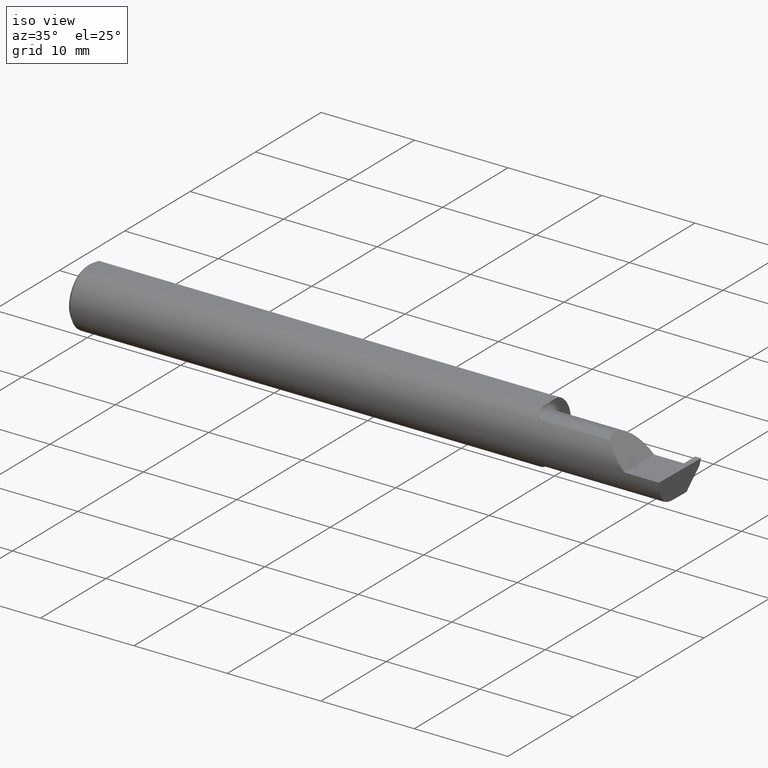
[diagram: clean part render]
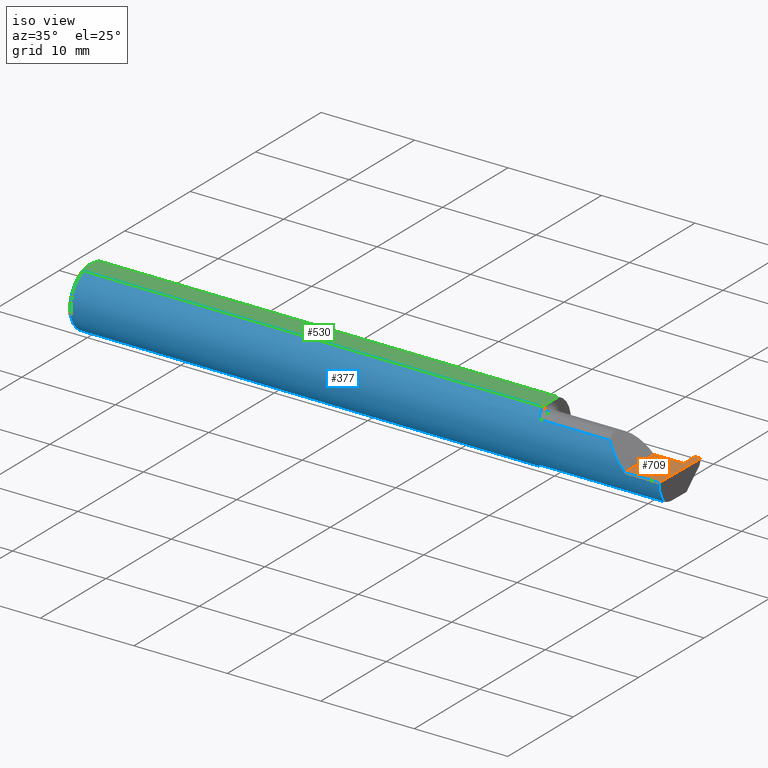
[diagram: same view with three faces highlighted in distinct colors, each labeled with its STEP entity id]
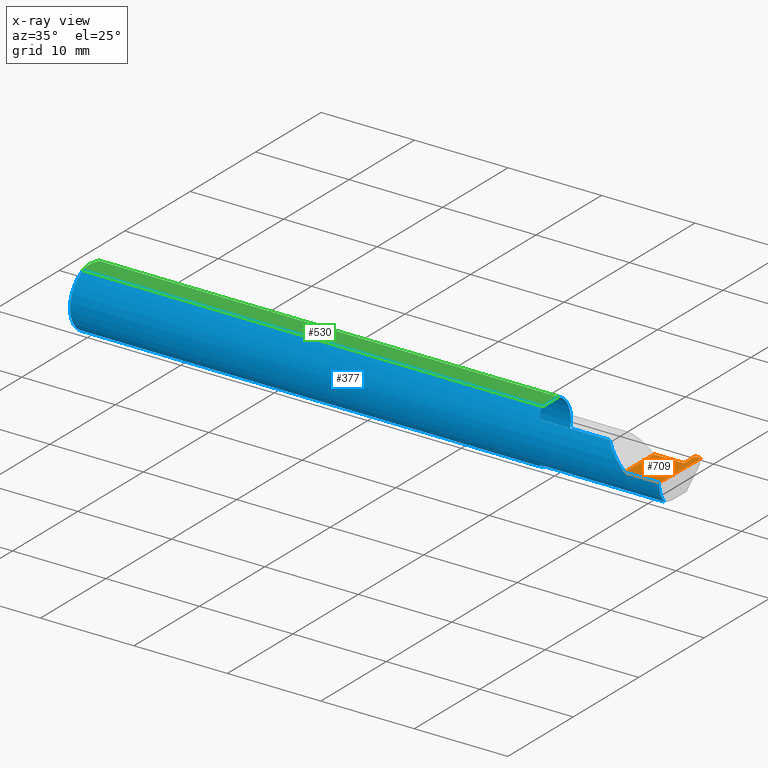
[diagram: x-ray of the same camera — body ghosted, the three highlighted faces saturated]
A machine part, iso view with three faces highlighted in distinct colors.
The next image is the same camera in x-ray (body ghosted, the three faces saturated) — at least one of them is partly hidden behind the body in this view.
Their STEP definitions:

[orange] entity #709 — the highlighted planar face has unit normal (-0, 0, -1).
#36 = DIRECTION ( 'NONE',  ( -0.000000000000000000, 1.000000000000000000, -0.000000000000000000 ) ) ;
#51 = ORIENTED_EDGE ( 'NONE', *, *, #91, .F. ) ;
#58 = VECTOR ( 'NONE', #219, 39.37007874015748143 ) ;
#91 = EDGE_CURVE ( 'NONE', #667, #267, #274, .T. ) ;
#104 = VERTEX_POINT ( 'NONE', #473 ) ;
#115 = EDGE_CURVE ( 'NONE', #182, #248, #643, .T. ) ;
#130 = CARTESIAN_POINT ( 'NONE',  ( 3.749399456654637998E-32, -0.1248500000000000026, 3.061616997868380676E-16 ) ) ;
#162 = DIRECTION ( 'NONE',  ( 1.000000000000000000, -0.000000000000000000, -0.000000000000000000 ) ) ;
#177 = ORIENTED_EDGE ( 'NONE', *, *, #350, .F. ) ;
#178 = EDGE_CURVE ( 'NONE', #104, #596, #676, .T. ) ;
#182 = VERTEX_POINT ( 'NONE', #303 ) ;
#201 = ORIENTED_EDGE ( 'NONE', *, *, #231, .T. ) ;
#207 = LINE ( 'NONE', #455, #755 ) ;
#219 = DIRECTION ( 'NONE',  ( 1.000000000000000000, 0.000000000000000000, 0.000000000000000000 ) ) ;
#227 = VECTOR ( 'NONE', #162, 39.37007874015748143 ) ;
#231 = EDGE_CURVE ( 'NONE', #319, #248, #255, .T. ) ;
#246 = DIRECTION ( 'NONE',  ( -1.224646799147352221E-16, 0.000000000000000000, -1.000000000000000000 ) ) ;
#248 = VERTEX_POINT ( 'NONE', #488 ) ;
#254 = EDGE_CURVE ( 'NONE', #667, #319, #428, .T. ) ;
#255 = LINE ( 'NONE', #737, #277 ) ;
#257 = CARTESIAN_POINT ( 'NONE',  ( 2.474499999999999922, 0.1221499999999999808, -3.306546357697866753E-19 ) ) ;
#267 = VERTEX_POINT ( 'NONE', #614 ) ;
#274 = LINE ( 'NONE', #707, #227 ) ;
#277 = VECTOR ( 'NONE', #546, 39.37007874015748143 ) ;
#280 = DIRECTION ( 'NONE',  ( 0.01744642479411464761, 0.9998477995484629233, -2.135106780035675284E-18 ) ) ;
#303 = CARTESIAN_POINT ( 'NONE',  ( 2.350000000000000089, 0.05414999999999988572, 1.836970198721028825E-17 ) ) ;
#319 = VERTEX_POINT ( 'NONE', #499 ) ;
#336 = VECTOR ( 'NONE', #364, 39.37007874015748143 ) ;
#350 = EDGE_CURVE ( 'NONE', #596, #182, #207, .T. ) ;
#359 = VECTOR ( 'NONE', #280, 39.37007874015748854 ) ;
#364 = DIRECTION ( 'NONE',  ( 0.01742050049977532378, -0.9998482515673753346, -2.130797594924658404E-18 ) ) ;
#365 = EDGE_CURVE ( 'NONE', #104, #267, #688, .T. ) ;
#372 = CARTESIAN_POINT ( 'NONE',  ( 2.350000000000000089, -0.1248500000000000026, 1.836970198721028825E-17 ) ) ;
#409 = ORIENTED_EDGE ( 'NONE', *, *, #115, .F. ) ;
#428 = LINE ( 'NONE', #553, #336 ) ;
#436 = DIRECTION ( 'NONE',  ( -1.000000000000000000, -0.000000000000000000, -0.000000000000000000 ) ) ;
#455 = CARTESIAN_POINT ( 'NONE',  ( 2.350000000000000089, -0.2000000000000000111, 1.836970198721028825E-17 ) ) ;
#457 = AXIS2_PLACEMENT_3D ( 'NONE', #788, #246, #559 ) ;
#473 = CARTESIAN_POINT ( 'NONE',  ( 2.495690077103728921, -0.1248499999950965084, 1.733801157256528502E-17 ) ) ;
#475 = FACE_OUTER_BOUND ( 'NONE', #477, .T. ) ;
#477 = EDGE_LOOP ( 'NONE', ( #759, #494, #51, #691, #201, #409, #177 ) ) ;
#488 = CARTESIAN_POINT ( 'NONE',  ( 2.474499999999999922, 0.05415000000000001062, 6.735576903354862878E-17 ) ) ;
#494 = ORIENTED_EDGE ( 'NONE', *, *, #365, .T. ) ;
#499 = CARTESIAN_POINT ( 'NONE',  ( 2.475684773821554607, 0.05415000000000002450, 1.488878195498846573E-18 ) ) ;
#546 = DIRECTION ( 'NONE',  ( -1.000000000000000000, 1.290993016573742007E-16, 1.224646799147352221E-16 ) ) ;
#553 = CARTESIAN_POINT ( 'NONE',  ( 2.480118901204498627, -0.2003463912558332838, 2.434732400344322502E-18 ) ) ;
#559 = DIRECTION ( 'NONE',  ( -1.000000000000000000, 0.000000000000000000, 1.224646799147352221E-16 ) ) ;
#560 = CARTESIAN_POINT ( 'NONE',  ( 2.494380489674781209, -0.1999019447116721915, 6.881915332554903690E-19 ) ) ;
#596 = VERTEX_POINT ( 'NONE', #372 ) ;
#614 = CARTESIAN_POINT ( 'NONE',  ( 2.500000000000000444, 0.1221499999999999808, 1.947508823608312588E-17 ) ) ;
#643 = LINE ( 'NONE', #754, #58 ) ;
#667 = VERTEX_POINT ( 'NONE', #257 ) ;
#676 = LINE ( 'NONE', #130, #731 ) ;
#688 = LINE ( 'NONE', #560, #359 ) ;
#691 = ORIENTED_EDGE ( 'NONE', *, *, #254, .T. ) ;
#707 = CARTESIAN_POINT ( 'NONE',  ( 2.399999999999999911, 0.1221499999999999808, -3.306546357697866753E-19 ) ) ;
#709 = ADVANCED_FACE ( 'NONE', ( #475 ), #724, .F. ) ;
#724 = PLANE ( 'NONE',  #457 ) ;
#731 = VECTOR ( 'NONE', #436, 39.37007874015748143 ) ;
#737 = CARTESIAN_POINT ( 'NONE',  ( 2.500000000000000000, 0.05415000000000002450, -4.018138097988493309E-33 ) ) ;
#754 = CARTESIAN_POINT ( 'NONE',  ( 1.949999999999999956, 0.05414999999999998981, 6.735557395310438818E-17 ) ) ;
#755 = VECTOR ( 'NONE', #36, 39.37007874015748143 ) ;
#759 = ORIENTED_EDGE ( 'NONE', *, *, #178, .F. ) ;
#788 = CARTESIAN_POINT ( 'NONE',  ( 2.500000000000000000, -0.2000000000000000111, 0.000000000000000000 ) ) ;

[blue] entity #377 — the highlighted cylindrical surface (edge-blend (fillet) strip) has radius 3.1712 mm, axis along (-1, -0, -0).
#4 = VECTOR ( 'NONE', #217, 39.37007874015748143 ) ;
#6 = CARTESIAN_POINT ( 'NONE',  ( 1.964990549600693415, -0.08554147198584186040, 0.09096407607062395595 ) ) ;
#7 = CARTESIAN_POINT ( 'NONE',  ( 1.950242610568498236, -0.03840785182185595115, -0.1189375631818110762 ) ) ;
#19 = ORIENTED_EDGE ( 'NONE', *, *, #178, .T. ) ;
#20 = EDGE_CURVE ( 'NONE', #532, #338, #370, .T. ) ;
#35 = B_SPLINE_CURVE_WITH_KNOTS ( 'NONE', 3,
 ( #534, #580, #235, #652, #403, #102, #112, #343, #353, #54, #298, #544 ),
 .UNSPECIFIED., .F., .F.,
 ( 4, 2, 2, 2, 2, 4 ),
 ( 1.963988863383734834E-07, 0.0002052720857047455965, 0.0004103477725231528491, 0.0008204991461599567834, 0.001230650519796760555, 0.001640801893433564435 ),
 .UNSPECIFIED. ) ;
#41 = DIRECTION ( 'NONE',  ( 1.000000000000000000, 0.000000000000000000, 0.000000000000000000 ) ) ;
#44 = CARTESIAN_POINT ( 'NONE',  ( 0.01499999999999999944, -0.04895916665957456698, 0.1148500000000000076 ) ) ;
#48 = EDGE_CURVE ( 'NONE', #562, #516, #635, .T. ) ;
#54 = CARTESIAN_POINT ( 'NONE',  ( 1.951929090759344287, -0.05370719728932715764, -0.1128289886859672325 ) ) ;
#57 = CARTESIAN_POINT ( 'NONE',  ( 1.959117122045868742, -0.07738857672815888100, 0.09808127502738701875 ) ) ;
#59 = CARTESIAN_POINT ( 'NONE',  ( 1.949999999999999956, -0.03284222813693379872, -0.1205938689030582739 ) ) ;
#61 = CARTESIAN_POINT ( 'NONE',  ( 1.966486677516400272, -0.08696861555842264058, 0.08959154238194114162 ) ) ;
#65 = CARTESIAN_POINT ( 'NONE',  ( 1.954335346929611639, -0.06618116991694673878, 0.1062694618620808051 ) ) ;
#68 = VERTEX_POINT ( 'NONE', #767 ) ;
#71 = CARTESIAN_POINT ( 'NONE',  ( 1.950000000000000178, 0.04895916665957496944, 0.1148500000000000076 ) ) ;
#84 = CARTESIAN_POINT ( 'NONE',  ( 2.287163018370355072, -0.1127002472623169216, 0.06283698162964553025 ) ) ;
#85 = DIRECTION ( 'NONE',  ( -1.000000000000000000, -0.000000000000000000, -0.000000000000000000 ) ) ;
#87 = ORIENTED_EDGE ( 'NONE', *, *, #523, .F. ) ;
#100 = ORIENTED_EDGE ( 'NONE', *, *, #272, .T. ) ;
#102 = CARTESIAN_POINT ( 'NONE',  ( 1.960226514481664850, -0.07966992494485836129, -0.09623747760188229583 ) ) ;
#104 = VERTEX_POINT ( 'NONE', #473 ) ;
#106 = CARTESIAN_POINT ( 'NONE',  ( 2.494033449660867152, -0.09015216647662482874, -0.08637192471845768493 ) ) ;
#110 = EDGE_CURVE ( 'NONE', #193, #650, #404, .T. ) ;
#111 = VERTEX_POINT ( 'NONE', #281 ) ;
#112 = CARTESIAN_POINT ( 'NONE',  ( 1.958278800716857448, -0.07573621487658313556, -0.09938639293507191275 ) ) ;
#118 = LINE ( 'NONE', #552, #154 ) ;
#123 = CARTESIAN_POINT ( 'NONE',  ( 1.951326891871145719, -0.04895916665872474677, 0.1148500000000000076 ) ) ;
#129 = CARTESIAN_POINT ( 'NONE',  ( 1.972502509400819060, -0.09015216647698111319, 0.08637192471808594063 ) ) ;
#130 = CARTESIAN_POINT ( 'NONE',  ( 3.749399456654637998E-32, -0.1248500000000000026, 3.061616997868380676E-16 ) ) ;
#138 = CARTESIAN_POINT ( 'NONE',  ( 2.224749999999999783, -0.09015216647662482874, -0.08637192471845768493 ) ) ;
#141 = EDGE_CURVE ( 'NONE', #650, #111, #238, .T. ) ;
#154 = VECTOR ( 'NONE', #302, 39.37007874015748854 ) ;
#156 = CARTESIAN_POINT ( 'NONE',  ( 2.263628075281542529, -0.09015216647662421812, 0.08637192471845822617 ) ) ;
#168 = CARTESIAN_POINT ( 'NONE',  ( 2.224749999999999783, -0.09015216647662482874, 0.08637192471845768493 ) ) ;
#170 = CIRCLE ( 'NONE', #200, 0.1248500000000000026 ) ;
#176 = DIRECTION ( 'NONE',  ( 1.000000000000000000, 0.000000000000000000, 0.000000000000000000 ) ) ;
#178 = EDGE_CURVE ( 'NONE', #104, #596, #676, .T. ) ;
#180 = B_SPLINE_CURVE_WITH_KNOTS ( 'NONE', 3,
 ( #476, #7, #59, #185 ),
 .UNSPECIFIED., .F., .F.,
 ( 4, 4 ),
 ( 0.001640801893433564435, 0.002088276671954477758 ),
 .UNSPECIFIED. ) ;
#185 = CARTESIAN_POINT ( 'NONE',  ( 1.950000000000000178, -0.02715330672748003313, -0.1218614805168695830 ) ) ;
#193 = VERTEX_POINT ( 'NONE', #71 ) ;
#200 = AXIS2_PLACEMENT_3D ( 'NONE', #777, #41, #284 ) ;
#208 = ORIENTED_EDGE ( 'NONE', *, *, #586, .F. ) ;
#217 = DIRECTION ( 'NONE',  ( 1.000000000000000000, 0.000000000000000000, 0.000000000000000000 ) ) ;
#222 = CARTESIAN_POINT ( 'NONE',  ( 0.01499999999999999944, 0.000000000000000000, 0.000000000000000000 ) ) ;
#235 = CARTESIAN_POINT ( 'NONE',  ( 1.969784064659362954, -0.08911389870154515225, -0.08746251087962811366 ) ) ;
#238 = CIRCLE ( 'NONE', #249, 0.1248500000000000026 ) ;
#249 = AXIS2_PLACEMENT_3D ( 'NONE', #222, #722, #289 ) ;
#250 = CARTESIAN_POINT ( 'NONE',  ( 2.495688583004118666, -0.1248499869621840785, -5.705736120969982501E-05 ) ) ;
#252 =( BOUNDED_CURVE ( )  B_SPLINE_CURVE ( 3, ( #334, #330, #84, #271 ),
 .UNSPECIFIED., .F., .T. ) 
 B_SPLINE_CURVE_WITH_KNOTS ( ( 4, 4 ),
 ( 4.712388980384690562, 5.476375539154175520 ),
 .UNSPECIFIED. ) 
 CURVE ( )  GEOMETRIC_REPRESENTATION_ITEM ( )  RATIONAL_B_SPLINE_CURVE ( ( 1.000000000000000000, 0.9519489620492029847, 0.9519489620492029847, 1.000000000000000000 ) ) 
 REPRESENTATION_ITEM ( '' )  );
#269 = CYLINDRICAL_SURFACE ( 'NONE', #386, 0.1248500000000000026 ) ;
#271 = CARTESIAN_POINT ( 'NONE',  ( 2.263628075281542529, -0.09015216647662421812, 0.08637192471845822617 ) ) ;
#272 = EDGE_CURVE ( 'NONE', #532, #536, #648, .T. ) ;
#273 = CARTESIAN_POINT ( 'NONE',  ( 0.01499999999999999944, 0.000000000000000000, 0.000000000000000000 ) ) ;
#279 = ORIENTED_EDGE ( 'NONE', *, *, #744, .T. ) ;
#281 = CARTESIAN_POINT ( 'NONE',  ( 0.01499999999999999944, 0.000000000000000000, -0.1248500000000000026 ) ) ;
#284 = DIRECTION ( 'NONE',  ( 0.000000000000000000, 0.000000000000000000, -1.000000000000000000 ) ) ;
#289 = DIRECTION ( 'NONE',  ( 0.000000000000000000, 0.000000000000000000, 1.000000000000000000 ) ) ;
#290 = EDGE_CURVE ( 'NONE', #726, #557, #180, .T. ) ;
#298 = CARTESIAN_POINT ( 'NONE',  ( 1.951227715916084682, -0.04883822427082837314, -0.1150249279297937549 ) ) ;
#302 = DIRECTION ( 'NONE',  ( 0.02617296143184116158, -0.0004568507411563387400, 0.9996573249755575929 ) ) ;
#310 = ORIENTED_EDGE ( 'NONE', *, *, #20, .F. ) ;
#316 = CARTESIAN_POINT ( 'NONE',  ( 1.974999999999999867, -0.09015216647662482874, 0.08637192471845768493 ) ) ;
#318 = EDGE_CURVE ( 'NONE', #111, #562, #703, .T. ) ;
#330 = CARTESIAN_POINT ( 'NONE',  ( 2.317406910344188997, -0.1248500000000000304, 0.03259308965581166062 ) ) ;
#334 = CARTESIAN_POINT ( 'NONE',  ( 2.350000000000000089, -0.1248500000000000026, 1.836970198721028825E-17 ) ) ;
#338 = VERTEX_POINT ( 'NONE', #747 ) ;
#343 = CARTESIAN_POINT ( 'NONE',  ( 1.955064983703084458, -0.06736177101644112708, -0.1052426774175050650 ) ) ;
#347 = LINE ( 'NONE', #168, #634 ) ;
#353 = CARTESIAN_POINT ( 'NONE',  ( 1.953850144156349167, -0.06295012366509133983, -0.1079450122012245855 ) ) ;
#363 = CARTESIAN_POINT ( 'NONE',  ( 1.961053217927678949, -0.08094812012684945990, 0.09514231764822853044 ) ) ;
#366 = ORIENTED_EDGE ( 'NONE', *, *, #110, .F. ) ;
#370 = LINE ( 'NONE', #138, #558 ) ;
#372 = CARTESIAN_POINT ( 'NONE',  ( 2.350000000000000089, -0.1248500000000000026, 1.836970198721028825E-17 ) ) ;
#377 = ADVANCED_FACE ( 'NONE', ( #503 ), #269, .T. ) ;
#385 = CARTESIAN_POINT ( 'NONE',  ( 0.000000000000000000, 0.000000000000000000, 0.000000000000000000 ) ) ;
#386 = AXIS2_PLACEMENT_3D ( 'NONE', #385, #617, #626 ) ;
#400 = CARTESIAN_POINT ( 'NONE',  ( 0.000000000000000000, 0.04895916665957456698, 0.1148500000000000076 ) ) ;
#403 = CARTESIAN_POINT ( 'NONE',  ( 1.964311064734461709, -0.08485061678078631431, -0.09161469295857084527 ) ) ;
#404 = LINE ( 'NONE', #400, #435 ) ;
#416 = ORIENTED_EDGE ( 'NONE', *, *, #561, .F. ) ;
#431 = CARTESIAN_POINT ( 'NONE',  ( 1.970195245915134841, -0.08928014009840809506, 0.08728826463238045785 ) ) ;
#435 = VECTOR ( 'NONE', #639, 39.37007874015748143 ) ;
#436 = DIRECTION ( 'NONE',  ( -1.000000000000000000, -0.000000000000000000, -0.000000000000000000 ) ) ;
#461 = DIRECTION ( 'NONE',  ( -1.000000000000000000, -0.000000000000000000, -0.000000000000000000 ) ) ;
#472 = CARTESIAN_POINT ( 'NONE',  ( 2.495688583004118666, -0.1248499869621840785, -5.705736120969982501E-05 ) ) ;
#473 = CARTESIAN_POINT ( 'NONE',  ( 2.495690077103728921, -0.1248499999950965084, 1.733801157256528502E-17 ) ) ;
#474 = EDGE_LOOP ( 'NONE', ( #310, #100, #701, #19, #279, #416, #589, #575, #776, #636, #366, #87, #539, #208 ) ) ;
#476 = CARTESIAN_POINT ( 'NONE',  ( 1.950756598855983848, -0.04385000000000000009, -0.1168961077196328247 ) ) ;
#487 = CARTESIAN_POINT ( 'NONE',  ( 0.01499999999999987454, 0.04895916665957496944, 0.1148500000000000076 ) ) ;
#503 = FACE_OUTER_BOUND ( 'NONE', #474, .T. ) ;
#504 = CARTESIAN_POINT ( 'NONE',  ( 0.000000000000000000, -0.04895916665957456698, 0.1148500000000000076 ) ) ;
#516 = VERTEX_POINT ( 'NONE', #774 ) ;
#523 = EDGE_CURVE ( 'NONE', #557, #193, #170, .T. ) ;
#525 = AXIS2_PLACEMENT_3D ( 'NONE', #273, #85, #629 ) ;
#528 = CARTESIAN_POINT ( 'NONE',  ( 1.950000000000000178, -0.02715330672748003313, -0.1218614805168695830 ) ) ;
#532 = VERTEX_POINT ( 'NONE', #106 ) ;
#534 = CARTESIAN_POINT ( 'NONE',  ( 1.974999999999999867, -0.09015216647662478711, -0.08637192471845771269 ) ) ;
#536 = VERTEX_POINT ( 'NONE', #472 ) ;
#539 = ORIENTED_EDGE ( 'NONE', *, *, #290, .F. ) ;
#544 = CARTESIAN_POINT ( 'NONE',  ( 1.950756598855983848, -0.04385000000000000009, -0.1168961077196328247 ) ) ;
#548 = CARTESIAN_POINT ( 'NONE',  ( 1.952489051389806329, -0.05793447593674446588, 0.1110239341513696160 ) ) ;
#549 = CARTESIAN_POINT ( 'NONE',  ( 2.494033449660867152, -0.09015216647662482874, -0.08637192471845768493 ) ) ;
#552 = CARTESIAN_POINT ( 'NONE',  ( 2.493072779947982820, -0.1248043149033065402, -0.09996577117162359916 ) ) ;
#557 = VERTEX_POINT ( 'NONE', #528 ) ;
#558 = VECTOR ( 'NONE', #461, 39.37007874015748143 ) ;
#561 = EDGE_CURVE ( 'NONE', #68, #578, #347, .T. ) ;
#562 = VERTEX_POINT ( 'NONE', #44 ) ;
#575 = ORIENTED_EDGE ( 'NONE', *, *, #48, .F. ) ;
#578 = VERTEX_POINT ( 'NONE', #156 ) ;
#580 = CARTESIAN_POINT ( 'NONE',  ( 1.972259638933031578, -0.09015216647662445404, -0.08637192471845808739 ) ) ;
#586 = EDGE_CURVE ( 'NONE', #338, #726, #35, .T. ) ;
#589 = ORIENTED_EDGE ( 'NONE', *, *, #669, .F. ) ;
#596 = VERTEX_POINT ( 'NONE', #372 ) ;
#606 = CARTESIAN_POINT ( 'NONE',  ( 2.494256244271084721, -0.1126860773865890480, -0.06285177167860772629 ) ) ;
#617 = DIRECTION ( 'NONE',  ( -1.000000000000000000, -0.000000000000000000, -0.000000000000000000 ) ) ;
#626 = DIRECTION ( 'NONE',  ( 0.000000000000000000, 0.000000000000000000, 1.000000000000000000 ) ) ;
#629 = DIRECTION ( 'NONE',  ( 0.000000000000000000, 0.000000000000000000, 1.000000000000000000 ) ) ;
#634 = VECTOR ( 'NONE', #176, 39.37007874015748143 ) ;
#635 = LINE ( 'NONE', #504, #4 ) ;
#636 = ORIENTED_EDGE ( 'NONE', *, *, #141, .F. ) ;
#639 = DIRECTION ( 'NONE',  ( -1.000000000000000000, -0.000000000000000000, -0.000000000000000000 ) ) ;
#648 =( BOUNDED_CURVE ( )  B_SPLINE_CURVE ( 3, ( #549, #606, #666, #250 ),
 .UNSPECIFIED., .F., .F. ) 
 B_SPLINE_CURVE_WITH_KNOTS ( ( 4, 4 ),
 ( 0.2190942387645155864, 0.9826237902196512941 ),
 .UNSPECIFIED. ) 
 CURVE ( )  GEOMETRIC_REPRESENTATION_ITEM ( )  RATIONAL_B_SPLINE_CURVE ( ( 1.000000000000000000, 0.9520057322288819623, 0.9520057322288819623, 1.000000000000000000 ) ) 
 REPRESENTATION_ITEM ( '' )  );
#650 = VERTEX_POINT ( 'NONE', #487 ) ;
#652 = CARTESIAN_POINT ( 'NONE',  ( 1.965875432832431491, -0.08647060418110406876, -0.09007670266896511402 ) ) ;
#663 = B_SPLINE_CURVE_WITH_KNOTS ( 'NONE', 3,
 ( #123, #548, #65, #57, #363, #6, #61, #431, #129, #316 ),
 .UNSPECIFIED., .F., .F.,
 ( 4, 2, 2, 2, 4 ),
 ( 5.065792319871578098E-07, 0.0007388407001989738283, 0.001108007760682467799, 0.001292591290924215109, 0.001477174821165962420 ),
 .UNSPECIFIED. ) ;
#666 = CARTESIAN_POINT ( 'NONE',  ( 2.494835769263151537, -0.1248351010429638308, -0.03262966116142157480 ) ) ;
#669 = EDGE_CURVE ( 'NONE', #516, #68, #663, .T. ) ;
#674 = EDGE_CURVE ( 'NONE', #536, #104, #118, .T. ) ;
#676 = LINE ( 'NONE', #130, #731 ) ;
#678 = CARTESIAN_POINT ( 'NONE',  ( 1.950756598855983848, -0.04385000000000000009, -0.1168961077196328247 ) ) ;
#701 = ORIENTED_EDGE ( 'NONE', *, *, #674, .T. ) ;
#703 = CIRCLE ( 'NONE', #525, 0.1248500000000000026 ) ;
#722 = DIRECTION ( 'NONE',  ( -1.000000000000000000, -0.000000000000000000, -0.000000000000000000 ) ) ;
#726 = VERTEX_POINT ( 'NONE', #678 ) ;
#731 = VECTOR ( 'NONE', #436, 39.37007874015748143 ) ;
#744 = EDGE_CURVE ( 'NONE', #596, #578, #252, .T. ) ;
#747 = CARTESIAN_POINT ( 'NONE',  ( 1.974999999999999867, -0.09015216647662478711, -0.08637192471845771269 ) ) ;
#767 = CARTESIAN_POINT ( 'NONE',  ( 1.974999999999999867, -0.09015216647662482874, 0.08637192471845768493 ) ) ;
#774 = CARTESIAN_POINT ( 'NONE',  ( 1.951326891871145719, -0.04895916665872474677, 0.1148500000000000076 ) ) ;
#776 = ORIENTED_EDGE ( 'NONE', *, *, #318, .F. ) ;
#777 = CARTESIAN_POINT ( 'NONE',  ( 1.950000000000000178, 0.000000000000000000, 0.000000000000000000 ) ) ;

[green] entity #530 — the highlighted planar face has unit normal (0, -0, 1).
#4 = VECTOR ( 'NONE', #217, 39.37007874015748143 ) ;
#14 = ORIENTED_EDGE ( 'NONE', *, *, #110, .T. ) ;
#25 = DIRECTION ( 'NONE',  ( -0.000000000000000000, 1.000000000000000000, 0.000000000000000000 ) ) ;
#28 = CARTESIAN_POINT ( 'NONE',  ( 1.949999999999999956, -0.007185469346090044528, 0.1148500000000000076 ) ) ;
#39 = CARTESIAN_POINT ( 'NONE',  ( 0.009410502401328750890, 0.03310661131402438395, 0.1148499999999999938 ) ) ;
#42 = CARTESIAN_POINT ( 'NONE',  ( 0.004999999999999962808, 0.008410227287019804779, 0.1148500000000000076 ) ) ;
#44 = CARTESIAN_POINT ( 'NONE',  ( 0.01499999999999999944, -0.04895916665957456698, 0.1148500000000000076 ) ) ;
#48 = EDGE_CURVE ( 'NONE', #562, #516, #635, .T. ) ;
#62 = B_SPLINE_CURVE_WITH_KNOTS ( 'NONE', 3,
 ( #327, #268, #149, #438, #28, #442 ),
 .UNSPECIFIED., .F., .F.,
 ( 4, 2, 4 ),
 ( 0.009485158816280120364, 0.01004274199597734486, 0.01060032517567456936 ),
 .UNSPECIFIED. ) ;
#71 = CARTESIAN_POINT ( 'NONE',  ( 1.950000000000000178, 0.04895916665957496944, 0.1148500000000000076 ) ) ;
#75 = CARTESIAN_POINT ( 'NONE',  ( 1.951339737573316135, -0.04810771292169493257, 0.1148500000000000215 ) ) ;
#79 = ORIENTED_EDGE ( 'NONE', *, *, #171, .T. ) ;
#86 = EDGE_CURVE ( 'NONE', #650, #748, #550, .T. ) ;
#95 = CARTESIAN_POINT ( 'NONE',  ( 0.01499999999999987454, 0.04895916665957496944, 0.1148500000000000076 ) ) ;
#110 = EDGE_CURVE ( 'NONE', #193, #650, #404, .T. ) ;
#116 = CARTESIAN_POINT ( 'NONE',  ( 0.01195732443765547617, -0.04120008761723503721, 0.1148499999999999938 ) ) ;
#122 = EDGE_LOOP ( 'NONE', ( #735, #223, #307, #716, #14, #233, #79 ) ) ;
#124 = CARTESIAN_POINT ( 'NONE',  ( 1.951365755776839572, -0.04385000000000001397, 0.1148500000000000076 ) ) ;
#149 = CARTESIAN_POINT ( 'NONE',  ( 1.951090261609496279, -0.02916889382056605043, 0.1148499999999999938 ) ) ;
#165 = CARTESIAN_POINT ( 'NONE',  ( 1.951365755776839572, -0.04385000000000001397, 0.1148500000000000076 ) ) ;
#171 = EDGE_CURVE ( 'NONE', #748, #562, #694, .T. ) ;
#181 = CARTESIAN_POINT ( 'NONE',  ( 0.004999999999999964542, -0.008410771716546833199, 0.1148500000000000215 ) ) ;
#193 = VERTEX_POINT ( 'NONE', #71 ) ;
#212 = LINE ( 'NONE', #565, #460 ) ;
#217 = DIRECTION ( 'NONE',  ( 1.000000000000000000, 0.000000000000000000, 0.000000000000000000 ) ) ;
#223 = ORIENTED_EDGE ( 'NONE', *, *, #311, .T. ) ;
#225 = PLANE ( 'NONE',  #299 ) ;
#233 = ORIENTED_EDGE ( 'NONE', *, *, #86, .T. ) ;
#268 = CARTESIAN_POINT ( 'NONE',  ( 1.951365755776839572, -0.03650543323727816619, 0.1148500000000000215 ) ) ;
#288 = DIRECTION ( 'NONE',  ( 1.000000000000000000, 0.000000000000000000, -0.000000000000000000 ) ) ;
#299 = AXIS2_PLACEMENT_3D ( 'NONE', #463, #718, #288 ) ;
#307 = ORIENTED_EDGE ( 'NONE', *, *, #768, .T. ) ;
#311 = EDGE_CURVE ( 'NONE', #516, #527, #492, .T. ) ;
#327 = CARTESIAN_POINT ( 'NONE',  ( 1.951365755776839572, -0.04385000000000001397, 0.1148500000000000076 ) ) ;
#332 = CARTESIAN_POINT ( 'NONE',  ( 0.004999999999999990563, 1.454187663965904829E-17, 0.1148500000000000076 ) ) ;
#392 = VERTEX_POINT ( 'NONE', #680 ) ;
#400 = CARTESIAN_POINT ( 'NONE',  ( 0.000000000000000000, 0.04895916665957456698, 0.1148500000000000076 ) ) ;
#404 = LINE ( 'NONE', #400, #435 ) ;
#415 = CARTESIAN_POINT ( 'NONE',  ( 0.005932194444709711773, -0.01671525318617311101, 0.1148500000000000215 ) ) ;
#424 = EDGE_CURVE ( 'NONE', #392, #193, #212, .T. ) ;
#435 = VECTOR ( 'NONE', #639, 39.37007874015748143 ) ;
#438 = CARTESIAN_POINT ( 'NONE',  ( 1.950400391910593223, -0.01449986171080063641, 0.1148500000000000076 ) ) ;
#442 = CARTESIAN_POINT ( 'NONE',  ( 1.950000000000000178, 0.0001781444078671173391, 0.1148500000000000076 ) ) ;
#449 = CARTESIAN_POINT ( 'NONE',  ( 0.01193974418109658951, 0.04115525648180412555, 0.1148500000000000215 ) ) ;
#460 = VECTOR ( 'NONE', #25, 39.37007874015748143 ) ;
#463 = CARTESIAN_POINT ( 'NONE',  ( 2.500000000000000000, -0.1248500000000000165, 0.1148500000000000076 ) ) ;
#487 = CARTESIAN_POINT ( 'NONE',  ( 0.01499999999999987454, 0.04895916665957496944, 0.1148500000000000076 ) ) ;
#492 = B_SPLINE_CURVE_WITH_KNOTS ( 'NONE', 3,
 ( #672, #75, #603, #541, #789, #124 ),
 .UNSPECIFIED., .F., .F.,
 ( 4, 2, 4 ),
 ( 0.009355882855483742266, 0.009420520835881931315, 0.009485158816280120364 ),
 .UNSPECIFIED. ) ;
#504 = CARTESIAN_POINT ( 'NONE',  ( 0.000000000000000000, -0.04895916665957456698, 0.1148500000000000076 ) ) ;
#516 = VERTEX_POINT ( 'NONE', #774 ) ;
#519 = CARTESIAN_POINT ( 'NONE',  ( 0.005947935873631229539, 0.01679708999422689988, 0.1148500000000000076 ) ) ;
#527 = VERTEX_POINT ( 'NONE', #165 ) ;
#530 = ADVANCED_FACE ( 'NONE', ( #646 ), #225, .T. ) ;
#541 = CARTESIAN_POINT ( 'NONE',  ( 1.951362484150213072, -0.04555293709188820706, 0.1148500000000000076 ) ) ;
#550 = B_SPLINE_CURVE_WITH_KNOTS ( 'NONE', 3,
 ( #95, #449, #39, #519, #42, #332 ),
 .UNSPECIFIED., .F., .F.,
 ( 4, 2, 4 ),
 ( 0.002396733445051246140, 0.003027584450080037307, 0.003658435455108828907 ),
 .UNSPECIFIED. ) ;
#555 = CARTESIAN_POINT ( 'NONE',  ( 0.004999999999999990563, 1.454187663965904829E-17, 0.1148500000000000076 ) ) ;
#562 = VERTEX_POINT ( 'NONE', #44 ) ;
#565 = CARTESIAN_POINT ( 'NONE',  ( 1.950000000000000178, -0.1248500000000000165, 0.1148500000000000076 ) ) ;
#603 = CARTESIAN_POINT ( 'NONE',  ( 1.951349474474288082, -0.04725615793094951195, 0.1148499999999999938 ) ) ;
#630 = CARTESIAN_POINT ( 'NONE',  ( 0.01499999999999999944, -0.04895916665957456698, 0.1148500000000000076 ) ) ;
#635 = LINE ( 'NONE', #504, #4 ) ;
#639 = DIRECTION ( 'NONE',  ( -1.000000000000000000, -0.000000000000000000, -0.000000000000000000 ) ) ;
#646 = FACE_OUTER_BOUND ( 'NONE', #122, .T. ) ;
#650 = VERTEX_POINT ( 'NONE', #487 ) ;
#656 = CARTESIAN_POINT ( 'NONE',  ( 0.009415874254822409126, -0.03313958207962818675, 0.1148500000000000076 ) ) ;
#672 = CARTESIAN_POINT ( 'NONE',  ( 1.951326891871145719, -0.04895916665872474677, 0.1148500000000000076 ) ) ;
#680 = CARTESIAN_POINT ( 'NONE',  ( 1.950000000000000178, 0.0001781444078671173391, 0.1148500000000000076 ) ) ;
#694 = B_SPLINE_CURVE_WITH_KNOTS ( 'NONE', 3,
 ( #700, #181, #415, #656, #116, #630 ),
 .UNSPECIFIED., .F., .F.,
 ( 4, 2, 4 ),
 ( 0.003658435455108828907, 0.004289327297787135992, 0.004920219140465443078 ),
 .UNSPECIFIED. ) ;
#700 = CARTESIAN_POINT ( 'NONE',  ( 0.004999999999999990563, 1.454187663965904829E-17, 0.1148500000000000076 ) ) ;
#716 = ORIENTED_EDGE ( 'NONE', *, *, #424, .T. ) ;
#718 = DIRECTION ( 'NONE',  ( 0.000000000000000000, -0.000000000000000000, 1.000000000000000000 ) ) ;
#735 = ORIENTED_EDGE ( 'NONE', *, *, #48, .T. ) ;
#748 = VERTEX_POINT ( 'NONE', #555 ) ;
#768 = EDGE_CURVE ( 'NONE', #527, #392, #62, .T. ) ;
#774 = CARTESIAN_POINT ( 'NONE',  ( 1.951326891871145719, -0.04895916665872474677, 0.1148500000000000076 ) ) ;
#789 = CARTESIAN_POINT ( 'NONE',  ( 1.951365755776839794, -0.04470142088163384098, 0.1148500000000000076 ) ) ;